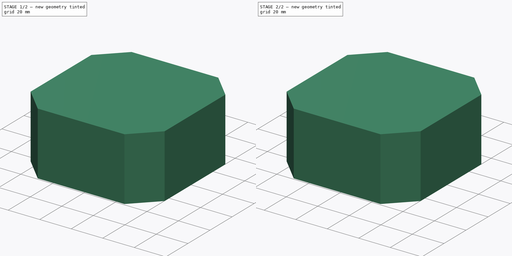
[diagram: build sequence overview — one tinted view per stage of 2, left to right]
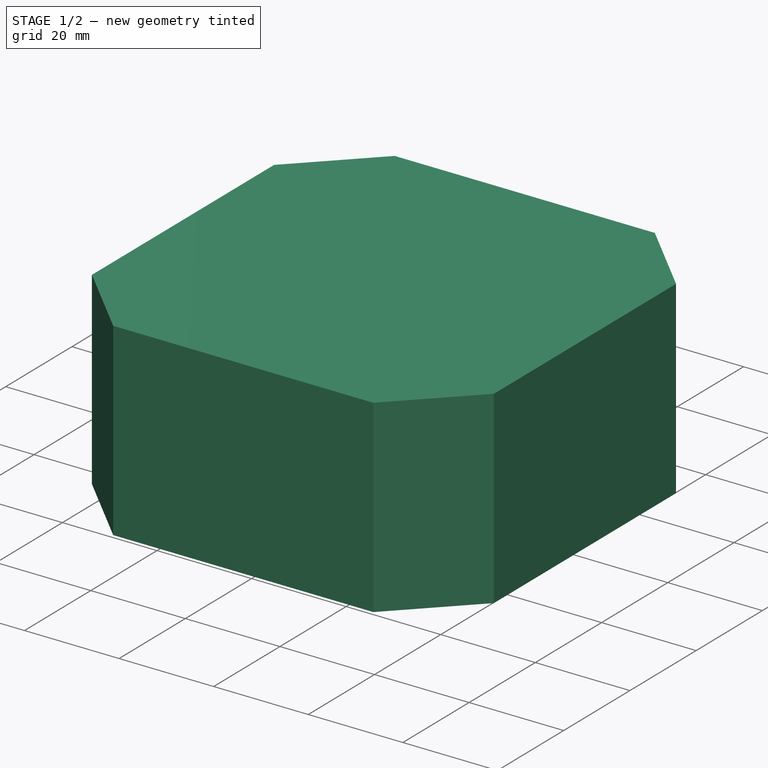
[diagram: stage 1 of 2 — iso view after this stage's code; geometry added in this stage tinted green]
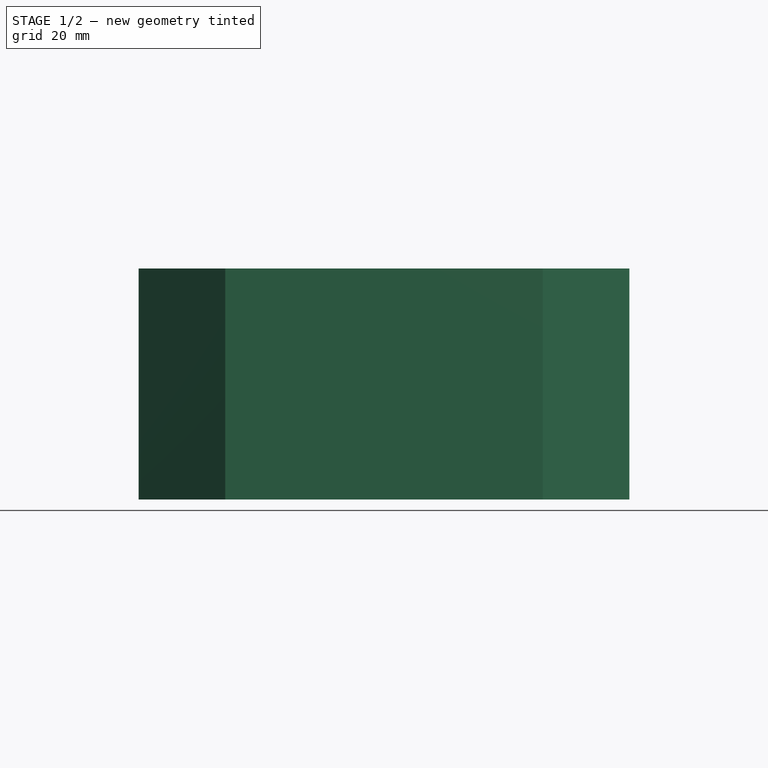
[diagram: stage 1 of 2 — front view after this stage's code; geometry added in this stage tinted green]
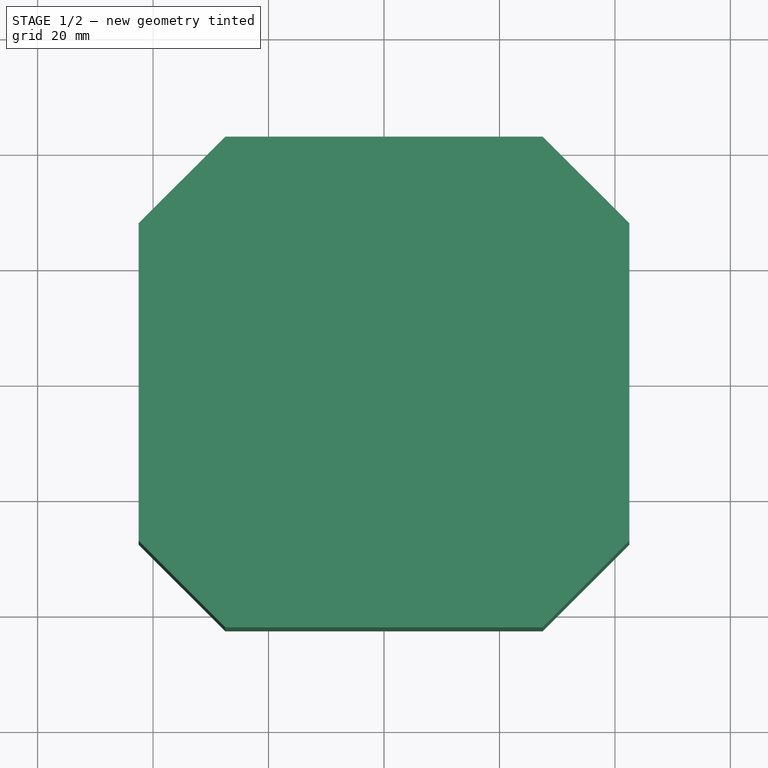
[diagram: stage 1 of 2 — top view after this stage's code; geometry added in this stage tinted green]
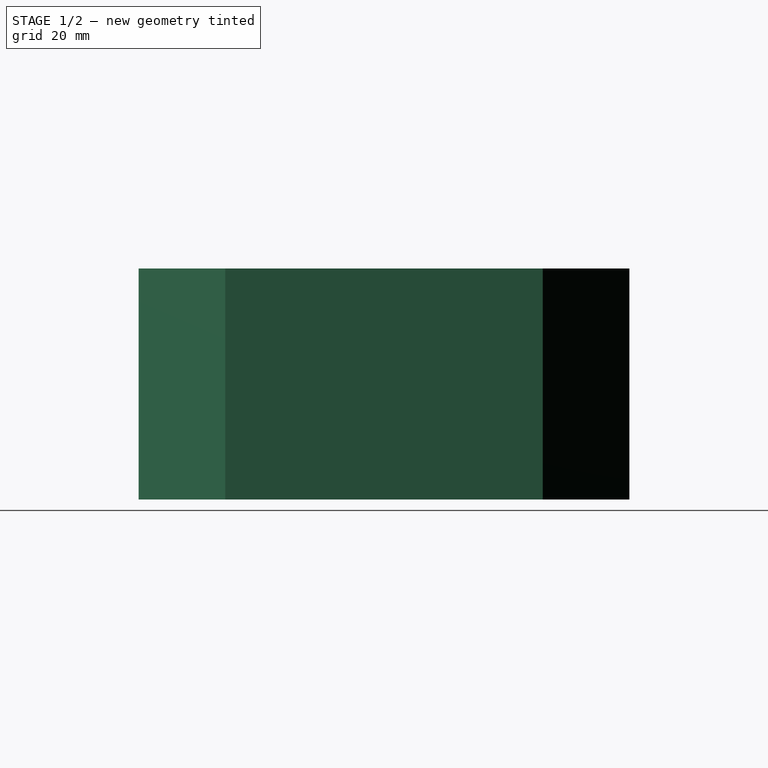
[diagram: stage 1 of 2 — right view after this stage's code; geometry added in this stage tinted green]
FCSTD DOCUMENT  (FreeCAD 0.21R33771 (Git))
Label: mlt-8540
License: All rights reserved
LicenseURL: https://en.wikipedia.org/wiki/All_rights_reserved
objects: Sketcher::SketchObject×1, Part::Feature×1, Part::Extrusion×1, PartDesign::FeatureBase×1, PartDesign::Body×1, App::Part×1
note: 5 computed .brp shape members not serialized (recipe doc carries the construction recipe); baked Part::Feature solids carry a one-line shape summary decoded from their .brp

FEATURE [Sketcher::SketchObject] Sketch
  FullyConstrained = true
  MapMode = 5
  Support = -> [XY_Plane001]
  sketch-geometry (8):
    g0: LineSegment StartX=-27.5 StartY=42.5 StartZ=0 EndX=27.5 EndY=42.5 EndZ=0
    g1: LineSegment StartX=-27.5 StartY=-42.5 StartZ=0 EndX=27.5 EndY=-42.5 EndZ=0
    g2: LineSegment StartX=-42.5 StartY=27.5 StartZ=0 EndX=-42.5 EndY=-27.5 EndZ=0
    g3: LineSegment StartX=-42.5 StartY=27.5 StartZ=0 EndX=-27.5 EndY=42.5 EndZ=0
    g4: LineSegment StartX=-42.5 StartY=-27.5 StartZ=0 EndX=-27.5 EndY=-42.5 EndZ=0
    g5: LineSegment StartX=42.5 StartY=27.5 StartZ=0 EndX=42.5 EndY=-27.5 EndZ=0
    g6: LineSegment StartX=27.5 StartY=42.5 StartZ=0 EndX=42.5 EndY=27.5 EndZ=0
    g7: LineSegment StartX=27.5 StartY=-42.5 StartZ=0 EndX=42.5 EndY=-27.5 EndZ=0
  constraints (24):
    c: Horizontal(g0)
    c: DistanceX(g0,g0) = 55
    c: Distance(g-1,g0) = 42.5
    c: Horizontal(g1)
    c: DistanceX(g1,g1) = 55
    c: Distance(g-1,g1) = 42.5
    c: DistanceX(g-1,g1) = 27.5
    c: DistanceX(g-1,g0) = 27.5
    c: Vertical(g2)
    c: Distance(g2) = 55
    c: Distance(g-1,g2) = 42.5
    c: DistanceY(g2,g-1) = 27.5
    c: Coincident(g3,g2)
    c: Coincident(g3,g0)
    c: Coincident(g4,g2)
    c: Coincident(g4,g1)
    c: Vertical(g5)
    c: DistanceY(g5,g5) = 55
    c: DistanceX(g-1,g5) = 42.5
    c: DistanceY(g-1,g5) = 27.5
    c: Coincident(g6,g0)
    c: Coincident(g6,g5)
    c: Coincident(g7,g1)
    c: Coincident(g7,g5)
FEATURE [Part::Feature] Face
  shape: bbox 93.5 x 93.5 x 2e-07 mm, 1 faces, 0 solids (baked)
FEATURE [Part::Extrusion] Extrude
  Base = -> Face
  Dir = (0,0,1)
  DirMode = 0
  FaceMakerClass = Part::FaceMakerBullseye
  LengthFwd = 40
  LengthRev = 0
  Solid = false
  Symmetric = false
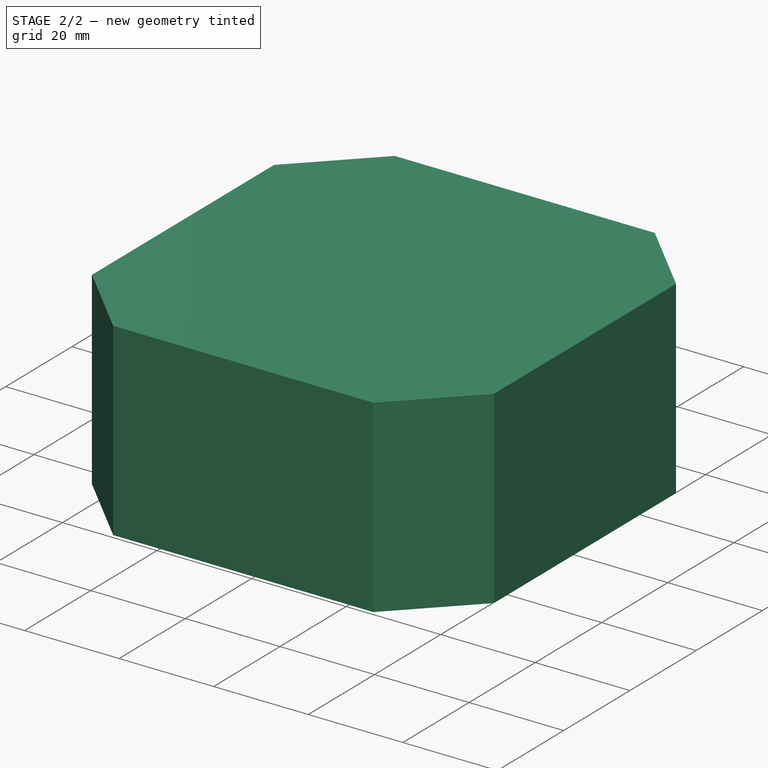
[diagram: stage 2 of 2 — iso view after this stage's code; geometry added in this stage tinted green]
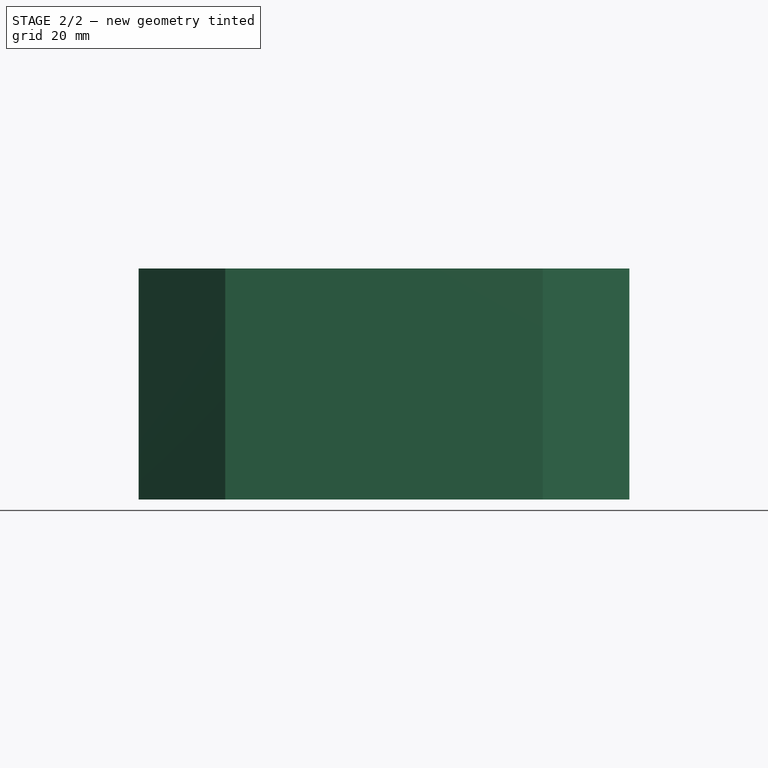
[diagram: stage 2 of 2 — front view after this stage's code; geometry added in this stage tinted green]
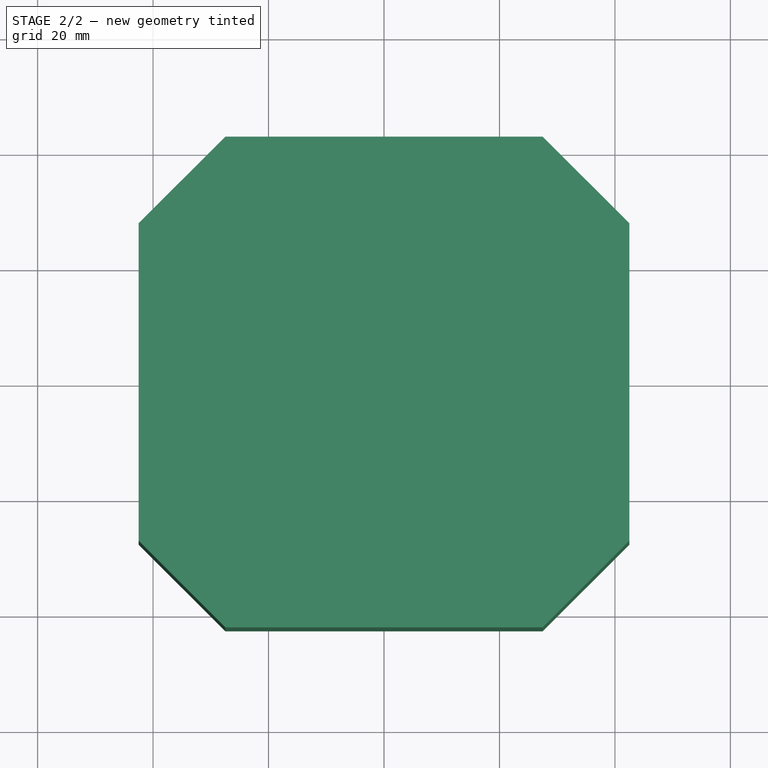
[diagram: stage 2 of 2 — top view after this stage's code; geometry added in this stage tinted green]
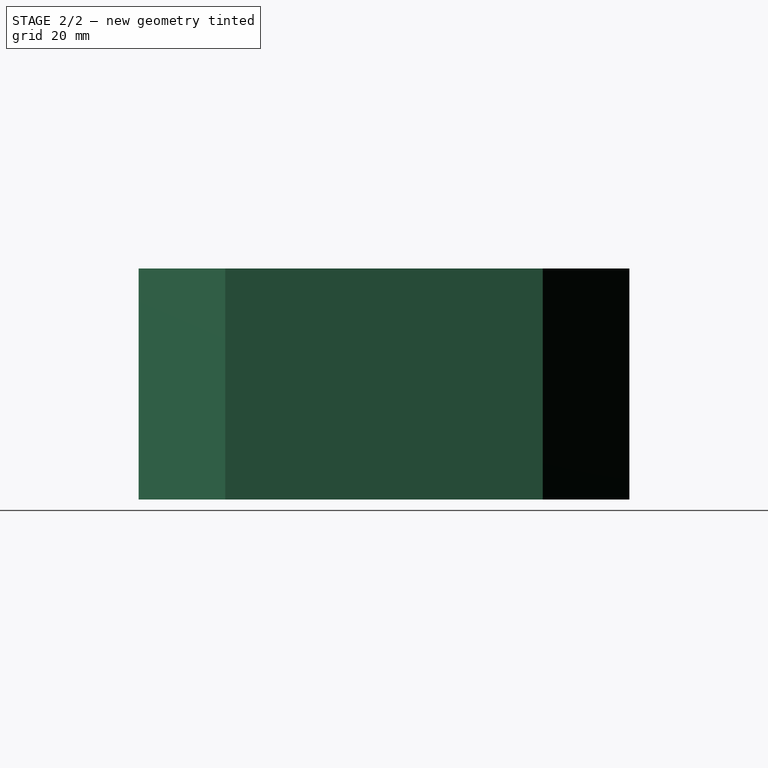
[diagram: stage 2 of 2 — right view after this stage's code; geometry added in this stage tinted green]
FEATURE [PartDesign::FeatureBase] BaseFeature
  BaseFeature = -> Extrude
FEATURE [PartDesign::Body] Body  label="Body001"
  BaseFeature = -> Extrude
  Group = -> [BaseFeature,Sketch]
  Origin = -> Origin001
  Tip = -> BaseFeature
FEATURE [App::Part] Part  label="Body"
  Group = -> [Body]
  Origin = -> Origin
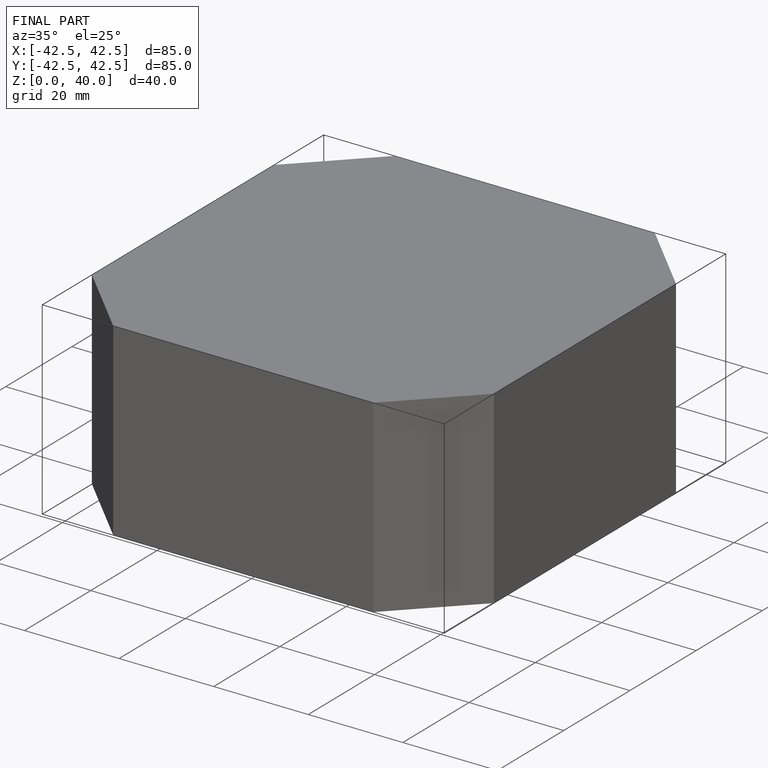
[diagram: finished part — iso view with bounding-box wireframe]
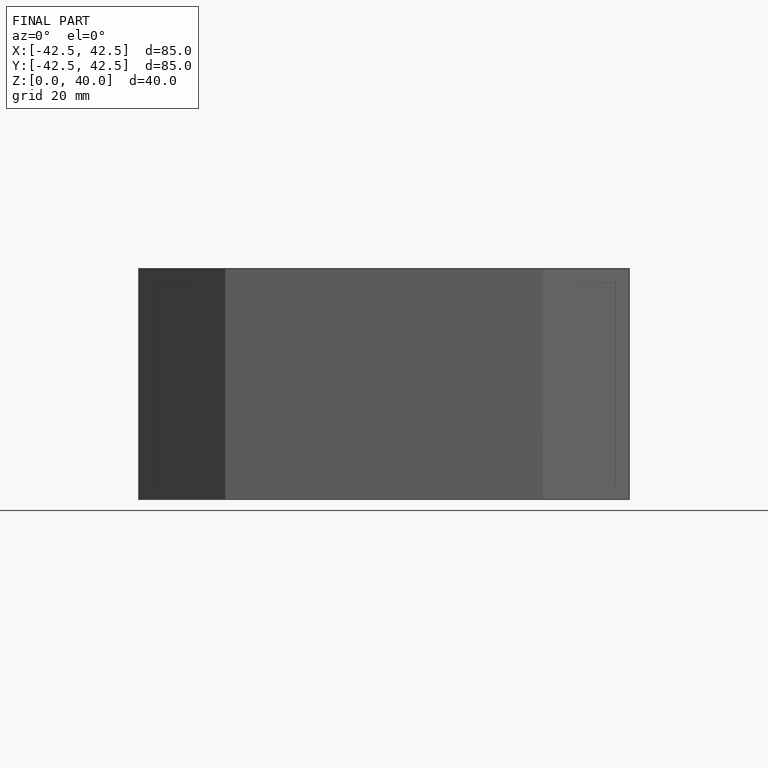
[diagram: finished part — front view with bounding-box wireframe]
